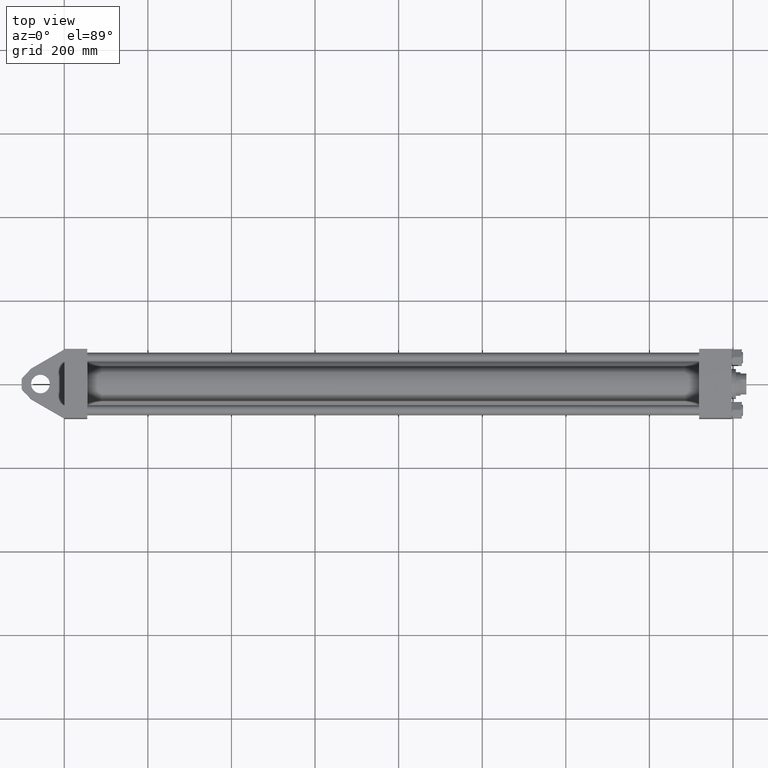
[diagram: clean part render]
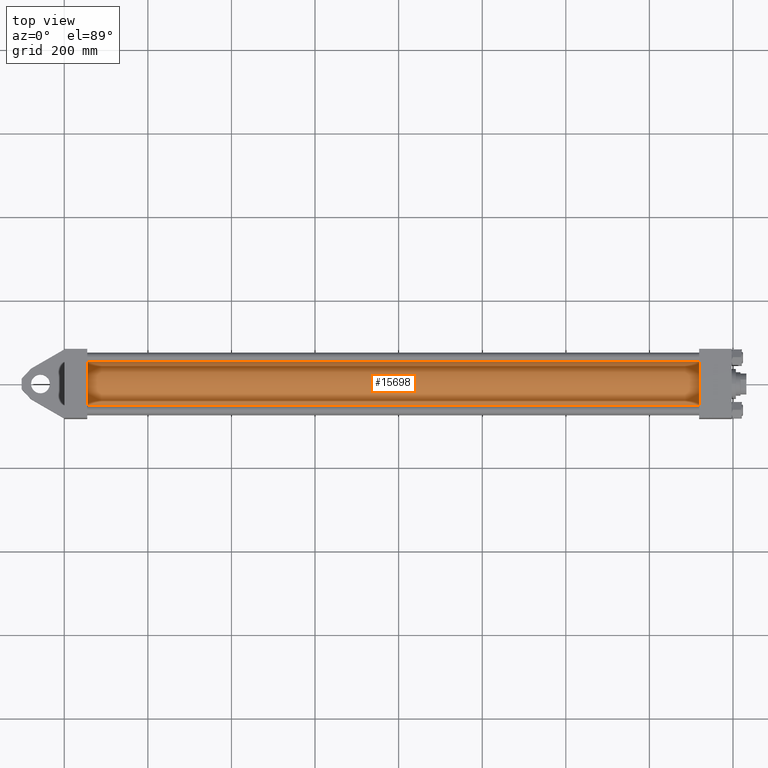
[diagram: same view with one face highlighted and labeled with its STEP entity id]
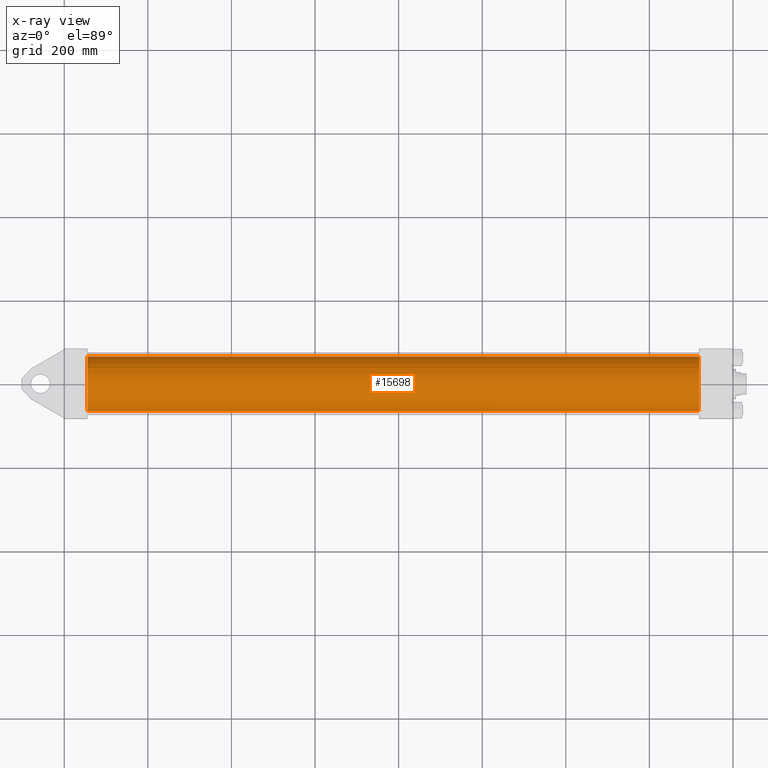
[diagram: x-ray of the same camera — body ghosted, the highlighted face saturated]
A machine part, top view. The second image highlights one B-rep face of the part: STEP entity #15698.
The next image is the same camera in x-ray: the body ghosted, the highlighted face saturated — about 0% of this face is hidden behind the body in this view.
In plain terms, the highlighted cylindrical surface (edge-blend (fillet) strip) has radius 65.5 mm, axis along (-1, -0, 0).
Its self-contained STEP definition (entity closure, byte-faithful):
#176 = CIRCLE ( 'NONE', #23530, 65.50000000000001421 ) ;
#1222 = CYLINDRICAL_SURFACE ( 'NONE', #42693, 65.50000000000001421 ) ;
#2042 = DIRECTION ( 'NONE',  ( 1.000000000000000000, 0.000000000000000000, 0.000000000000000000 ) ) ;
#11156 = DIRECTION ( 'NONE',  ( -1.000000000000000000, -0.000000000000000000, -0.000000000000000000 ) ) ;
#11831 = DIRECTION ( 'NONE',  ( -1.000000000000000000, -0.000000000000000000, -0.000000000000000000 ) ) ;
#12529 = FACE_OUTER_BOUND ( 'NONE', #32439, .T. ) ;
#13041 = VERTEX_POINT ( 'NONE', #32891 ) ;
#13805 = ORIENTED_EDGE ( 'NONE', *, *, #25681, .F. ) ;
#15698 = ADVANCED_FACE ( 'NONE', ( #12529 ), #1222, .T. ) ;
#16294 = CARTESIAN_POINT ( 'NONE',  ( 1519.000000000000000, -2.602085213965210642E-15, 0.000000000000000000 ) ) ;
#16647 = CARTESIAN_POINT ( 'NONE',  ( 1519.000000000000000, -2.602085213965210642E-15, 0.000000000000000000 ) ) ;
#17510 = VERTEX_POINT ( 'NONE', #18743 ) ;
#17928 = CARTESIAN_POINT ( 'NONE',  ( 1519.000000000000000, 5.419351320449954973E-15, -65.50000000000001421 ) ) ;
#18181 = CIRCLE ( 'NONE', #44511, 65.50000000000001421 ) ;
#18743 = CARTESIAN_POINT ( 'NONE',  ( 1519.000000000000000, -2.602085213965210642E-15, 65.50000000000001421 ) ) ;
#19423 = ORIENTED_EDGE ( 'NONE', *, *, #40340, .T. ) ;
#23530 = AXIS2_PLACEMENT_3D ( 'NONE', #16647, #2042, #38555 ) ;
#23932 = CARTESIAN_POINT ( 'NONE',  ( 1519.000000000000000, 5.419351320449954973E-15, -65.50000000000001421 ) ) ;
#24988 = VERTEX_POINT ( 'NONE', #17928 ) ;
#25681 = EDGE_CURVE ( 'NONE', #17510, #41450, #26458, .T. ) ;
#26200 = DIRECTION ( 'NONE',  ( 0.000000000000000000, 0.000000000000000000, 1.000000000000000000 ) ) ;
#26458 = LINE ( 'NONE', #36594, #27866 ) ;
#27866 = VECTOR ( 'NONE', #11156, 1000.000000000000000 ) ;
#28206 = CARTESIAN_POINT ( 'NONE',  ( 54.99999999999993605, -2.602085213965210642E-15, 0.000000000000000000 ) ) ;
#30630 = ORIENTED_EDGE ( 'NONE', *, *, #42547, .F. ) ;
#31599 = VECTOR ( 'NONE', #45815, 1000.000000000000000 ) ;
#32439 = EDGE_LOOP ( 'NONE', ( #30630, #46120, #19423, #13805 ) ) ;
#32709 = EDGE_CURVE ( 'NONE', #24988, #13041, #38061, .T. ) ;
#32891 = CARTESIAN_POINT ( 'NONE',  ( 54.99999999999993605, 5.419351320449954973E-15, -65.50000000000001421 ) ) ;
#35038 = DIRECTION ( 'NONE',  ( 1.000000000000000000, -0.000000000000000000, -0.000000000000000000 ) ) ;
#36594 = CARTESIAN_POINT ( 'NONE',  ( 1519.000000000000000, -2.602085213965210642E-15, 65.50000000000001421 ) ) ;
#38061 = LINE ( 'NONE', #23932, #31599 ) ;
#38555 = DIRECTION ( 'NONE',  ( 0.000000000000000000, 0.000000000000000000, -1.000000000000000000 ) ) ;
#40340 = EDGE_CURVE ( 'NONE', #13041, #41450, #18181, .T. ) ;
#41450 = VERTEX_POINT ( 'NONE', #42284 ) ;
#41879 = DIRECTION ( 'NONE',  ( 0.000000000000000000, 0.000000000000000000, 1.000000000000000000 ) ) ;
#42284 = CARTESIAN_POINT ( 'NONE',  ( 54.99999999999993605, -2.602085213965210642E-15, 65.50000000000001421 ) ) ;
#42547 = EDGE_CURVE ( 'NONE', #24988, #17510, #176, .T. ) ;
#42693 = AXIS2_PLACEMENT_3D ( 'NONE', #16294, #11831, #26200 ) ;
#44511 = AXIS2_PLACEMENT_3D ( 'NONE', #28206, #35038, #41879 ) ;
#45815 = DIRECTION ( 'NONE',  ( -1.000000000000000000, -0.000000000000000000, -0.000000000000000000 ) ) ;
#46120 = ORIENTED_EDGE ( 'NONE', *, *, #32709, .T. ) ;